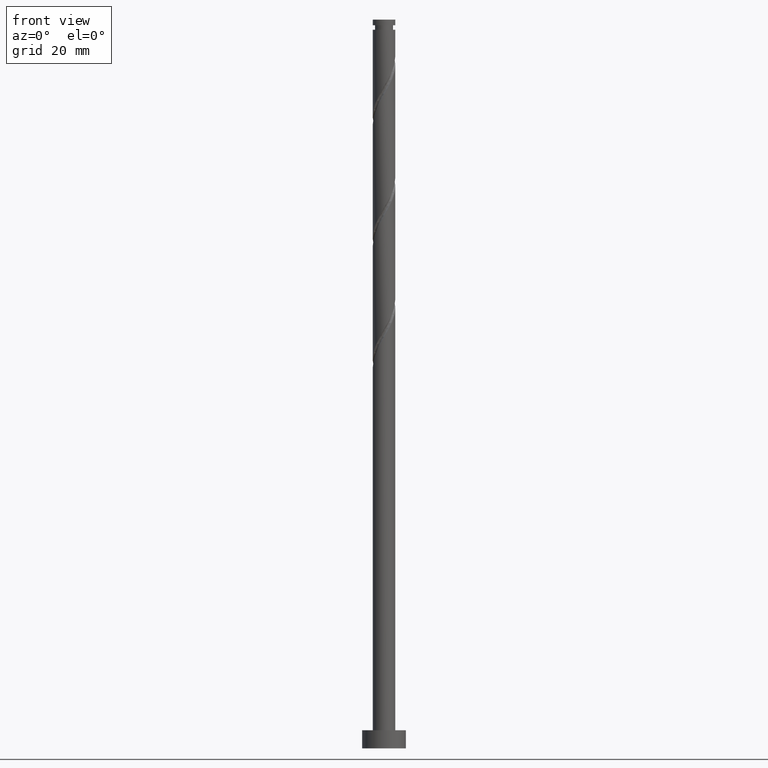
[diagram: clean part render]
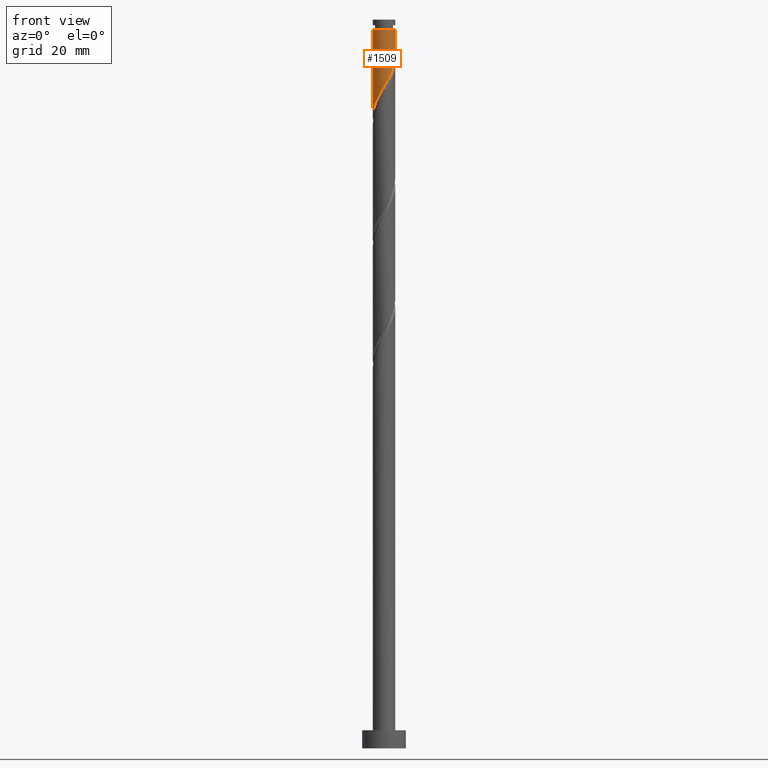
[diagram: same view with one face highlighted and labeled with its STEP entity id]
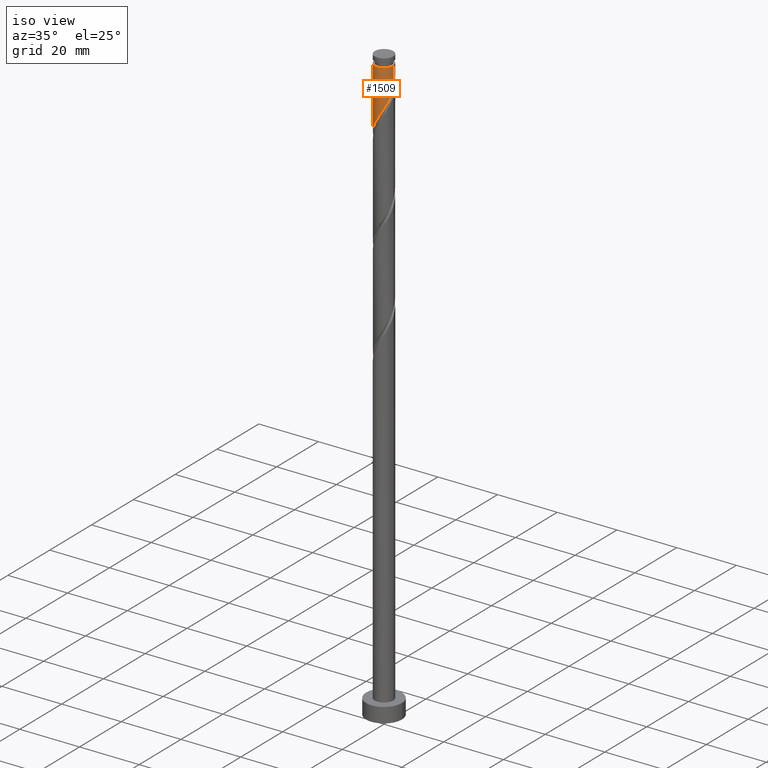
[diagram: same view with one face highlighted and labeled with its STEP entity id]
A machine part, front view. The second image highlights one B-rep face of the part: STEP entity #1509.
A second angle (iso view) of the same face is appended — the face is thin or edge-on in the first view.
In plain terms, the highlighted cylindrical surface (edge-blend (fillet) strip) has radius 3.1 mm, axis along (-0, -0, -1).
Its self-contained STEP definition (entity closure, byte-faithful):
#23 = ORIENTED_EDGE ( 'NONE', *, *, #637, .T. ) ;
#37 = CARTESIAN_POINT ( 'NONE',  ( 3.099999999999988098, 3.796405077356787029E-16, 197.1989505095030211 ) ) ;
#53 = CARTESIAN_POINT ( 'NONE',  ( 0.000000000000000000, 0.000000000000000000, 200.0000000000000000 ) ) ;
#78 =( BOUNDED_CURVE ( )  B_SPLINE_CURVE ( 2, ( #1549, #889, #1419, #216, #1503, #630, #302, #1045, #791, #1189, #1456, #1036, #248, #928, #105, #1314, #1583, #115, #801, #385, #661, #1177, #1567, #906, #1448, #374, #1723 ),
 .UNSPECIFIED., .F., .T. ) 
 B_SPLINE_CURVE_WITH_KNOTS ( ( 3, 2, 2, 2, 2, 2, 2, 2, 2, 2, 2, 2, 2, 3 ),
 ( 0.3045317669814461836, 0.3125000000000000000, 0.3229166666666666852, 0.3333333333333333148, 0.3437500000000000000, 0.3541666666666666852, 0.3645833333333333148, 0.3750000000000000000, 0.3854166666666666852, 0.3958333333333333148, 0.4062500000000000000, 0.4166666666666666852, 0.4270833333333333148, 0.4295317669814461836 ),
 .UNSPECIFIED. ) 
 CURVE ( )  GEOMETRIC_REPRESENTATION_ITEM ( )  RATIONAL_B_SPLINE_CURVE ( ( 0.9062941362546448332, 0.9031415850403490264, 0.9090909090909243817, 0.9013135103398428605, 0.9090909090909243817, 0.9013135103398428605, 0.9090909090909243817, 0.9013135103398428605, 0.9090909090909243817, 0.9013135103398428605, 0.9090909090909243817, 0.9013135103398428605, 0.9090909090909243817, 0.9013135103398428605, 0.9090909090909243817, 0.9013135103398428605, 0.9090909090909243817, 0.9013135103398428605, 0.9090909090909243817, 0.9013135103398428605, 0.9090909090909243817, 0.9013135103398428605, 0.9090909090909243817, 0.9013135103398428605, 0.9090909090909243817, 0.9072628343904182158, 0.9062941362546448332 ) ) 
 REPRESENTATION_ITEM ( '' )  );
#88 = CARTESIAN_POINT ( 'NONE',  ( 3.100000000000000533, 1.181348971045986316E-15, 189.9291838313797598 ) ) ;
#105 = CARTESIAN_POINT ( 'NONE',  ( -0.6168922110061054731, -3.037999999999999812, 180.5322838428363070 ) ) ;
#115 = CARTESIAN_POINT ( 'NONE',  ( -1.747476256661028238, -2.592853814885977215, 178.4489505095030211 ) ) ;
#133 = ORIENTED_EDGE ( 'NONE', *, *, #697, .T. ) ;
#162 = EDGE_CURVE ( 'NONE', #269, #1481, #78, .T. ) ;
#216 = CARTESIAN_POINT ( 'NONE',  ( 2.956784599678834002, -1.016852498676616312, 188.1711727317252780 ) ) ;
#248 = CARTESIAN_POINT ( 'NONE',  ( 0.1904201403740945764, -3.094146113249972796, 181.9211727317252212 ) ) ;
#269 = VERTEX_POINT ( 'NONE', #88 ) ;
#302 = CARTESIAN_POINT ( 'NONE',  ( 2.322539071194071436, -2.053244326128037756, 186.0878393983919352 ) ) ;
#374 = CARTESIAN_POINT ( 'NONE',  ( -3.100000000000000977, -0.09530005013879015718, 173.4256808527412659 ) ) ;
#385 = CARTESIAN_POINT ( 'NONE',  ( -2.359012395595048606, -2.052224327502166101, 177.0600616206141353 ) ) ;
#470 = CYLINDRICAL_SURFACE ( 'NONE', #777, 3.100000000000000089 ) ;
#521 = CARTESIAN_POINT ( 'NONE',  ( -3.100000000000000089, 0.000000000000000000, 200.0000000000000000 ) ) ;
#555 = EDGE_LOOP ( 'NONE', ( #1563, #133, #23, #830 ) ) ;
#630 = CARTESIAN_POINT ( 'NONE',  ( 2.592853814885977215, -1.747476256661028460, 186.7822838428363639 ) ) ;
#637 = EDGE_CURVE ( 'NONE', #1717, #1481, #659, .T. ) ;
#659 = LINE ( 'NONE', #521, #1493 ) ;
#661 = CARTESIAN_POINT ( 'NONE',  ( -2.584399066908310783, -1.711981735581151520, 176.3656171761696783 ) ) ;
#668 = CARTESIAN_POINT ( 'NONE',  ( 0.000000000000000000, 0.000000000000000000, 197.1989505095030211 ) ) ;
#697 = EDGE_CURVE ( 'NONE', #1041, #1717, #968, .T. ) ;
#767 = CARTESIAN_POINT ( 'NONE',  ( -3.100000000000000533, -1.899130624339749892E-15, 173.2625171647130742 ) ) ;
#777 = AXIS2_PLACEMENT_3D ( 'NONE', #53, #1006, #876 ) ;
#779 = DIRECTION ( 'NONE',  ( -0.000000000000000000, -0.000000000000000000, -1.000000000000000000 ) ) ;
#791 = CARTESIAN_POINT ( 'NONE',  ( 1.711981735581150632, -2.584399066908311671, 184.6989505095030211 ) ) ;
#801 = CARTESIAN_POINT ( 'NONE',  ( -2.053244326128037756, -2.322539071194071436, 177.7545060650585071 ) ) ;
#810 = AXIS2_PLACEMENT_3D ( 'NONE', #668, #779, #895 ) ;
#818 = LINE ( 'NONE', #842, #944 ) ;
#830 = ORIENTED_EDGE ( 'NONE', *, *, #162, .F. ) ;
#842 = CARTESIAN_POINT ( 'NONE',  ( 3.100000000000000089, 3.796405077356794918E-16, 200.0000000000000000 ) ) ;
#876 = DIRECTION ( 'NONE',  ( -1.000000000000000000, 0.000000000000000000, 0.000000000000000000 ) ) ;
#889 = CARTESIAN_POINT ( 'NONE',  ( 3.100000000000000977, -0.3115617227303536518, 189.3957574621904882 ) ) ;
#895 = DIRECTION ( 'NONE',  ( -1.000000000000000000, 0.000000000000000000, 0.000000000000000000 ) ) ;
#906 = CARTESIAN_POINT ( 'NONE',  ( -3.069076826178780415, -0.5977722040837869510, 174.2822838428363639 ) ) ;
#928 = CARTESIAN_POINT ( 'NONE',  ( -0.2169319233355973542, -3.119215400321165621, 181.2267282872808494 ) ) ;
#944 = VECTOR ( 'NONE', #1363, 1000.000000000000000 ) ;
#955 = EDGE_CURVE ( 'NONE', #1041, #269, #818, .T. ) ;
#968 = CIRCLE ( 'NONE', #810, 3.099999999999988098 ) ;
#1006 = DIRECTION ( 'NONE',  ( -0.000000000000000000, -0.000000000000000000, -1.000000000000000000 ) ) ;
#1036 = CARTESIAN_POINT ( 'NONE',  ( 0.5977722040837861739, -3.069076826178781303, 182.6156171761696498 ) ) ;
#1041 = VERTEX_POINT ( 'NONE', #37 ) ;
#1045 = CARTESIAN_POINT ( 'NONE',  ( 2.052224327502166101, -2.359012395595048606, 185.3933949539474497 ) ) ;
#1162 = DIRECTION ( 'NONE',  ( -0.000000000000000000, -0.000000000000000000, -1.000000000000000000 ) ) ;
#1177 = CARTESIAN_POINT ( 'NONE',  ( -2.809785738221574292, -1.371739143660136495, 175.6711727317252212 ) ) ;
#1189 = CARTESIAN_POINT ( 'NONE',  ( 1.371739143660136495, -2.809785738221574292, 184.0045060650585924 ) ) ;
#1314 = CARTESIAN_POINT ( 'NONE',  ( -1.016852498676614980, -2.956784599678835779, 179.8378393983919068 ) ) ;
#1363 = DIRECTION ( 'NONE',  ( -0.000000000000000000, -0.000000000000000000, -1.000000000000000000 ) ) ;
#1419 = CARTESIAN_POINT ( 'NONE',  ( 3.037999999999999812, -0.6168922110061054731, 188.8656171761696783 ) ) ;
#1448 = CARTESIAN_POINT ( 'NONE',  ( -3.094146113249972352, -0.1904201403740952703, 173.5878393983919068 ) ) ;
#1456 = CARTESIAN_POINT ( 'NONE',  ( 0.9847556738719618341, -2.939431282200177353, 183.3100616206141353 ) ) ;
#1467 = CARTESIAN_POINT ( 'NONE',  ( -3.099999999999988098, 0.000000000000000000, 197.1989505095030211 ) ) ;
#1481 = VERTEX_POINT ( 'NONE', #767 ) ;
#1493 = VECTOR ( 'NONE', #1162, 1000.000000000000000 ) ;
#1503 = CARTESIAN_POINT ( 'NONE',  ( 2.774819207282405387, -1.382164377668822164, 187.4767282872807925 ) ) ;
#1509 = ADVANCED_FACE ( 'NONE', ( #1700 ), #470, .T. ) ;
#1549 = CARTESIAN_POINT ( 'NONE',  ( 3.100000000000000533, 1.181348971045986316E-15, 189.9291838313797882 ) ) ;
#1563 = ORIENTED_EDGE ( 'NONE', *, *, #955, .F. ) ;
#1567 = CARTESIAN_POINT ( 'NONE',  ( -2.939431282200177353, -0.9847556738719620562, 174.9767282872808210 ) ) ;
#1583 = CARTESIAN_POINT ( 'NONE',  ( -1.382164377668821054, -2.774819207282405831, 179.1433949539474781 ) ) ;
#1700 = FACE_OUTER_BOUND ( 'NONE', #555, .T. ) ;
#1717 = VERTEX_POINT ( 'NONE', #1467 ) ;
#1723 = CARTESIAN_POINT ( 'NONE',  ( -3.100000000000000533, -1.899130624339749892E-15, 173.2625171647130742 ) ) ;